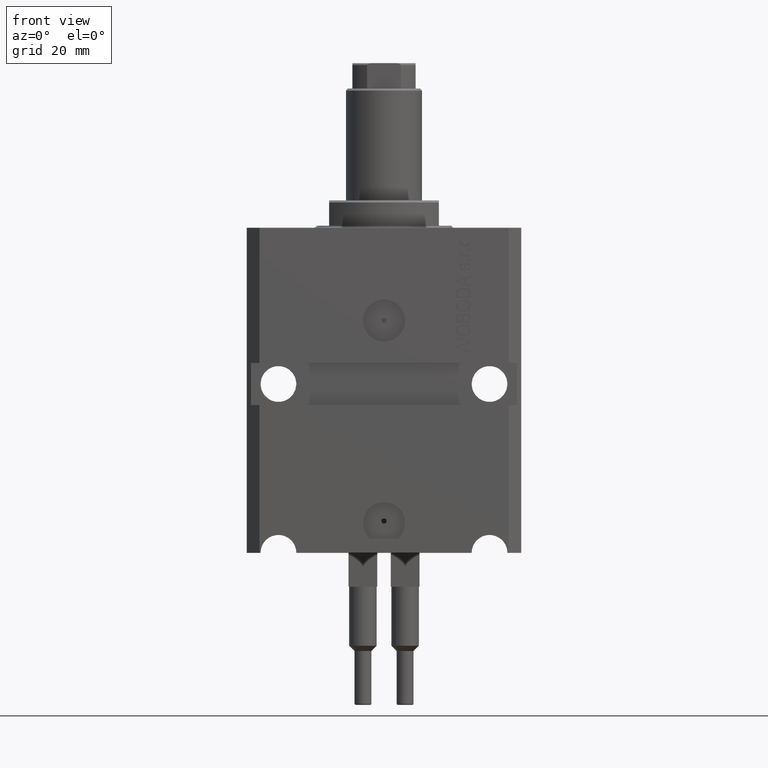
[diagram: clean part render]
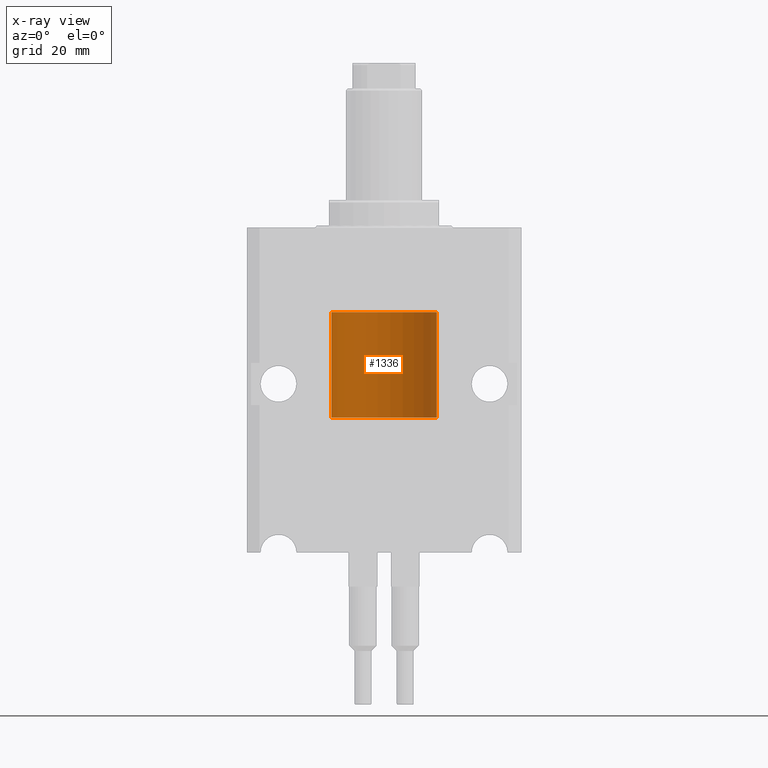
[diagram: x-ray — body ghosted, one internal face saturated and labeled with its STEP entity id]
A machine part, front view, then the same camera in x-ray: the body is ghosted and one INTERNAL B-rep face — a face not visible from any outside direction — is saturated and labeled: STEP entity #1336.
In plain terms, the highlighted cylindrical surface (partial cylindrical patch) has radius 12.5 mm, axis along (-0, -0, -1).
Its self-contained STEP definition (entity closure, byte-faithful):
#354 = AXIS2_PLACEMENT_3D ( 'NONE', #20934, #34907, #3498 ) ;
#892 = LINE ( 'NONE', #24735, #3805 ) ;
#1336 = ADVANCED_FACE ( 'NONE', ( #38346 ), #14269, .T. ) ;
#3293 = ORIENTED_EDGE ( 'NONE', *, *, #7024, .F. ) ;
#3498 = DIRECTION ( 'NONE',  ( -1.000000000000000000, 0.000000000000000000, 0.000000000000000000 ) ) ;
#3805 = VECTOR ( 'NONE', #32074, 1000.000000000000000 ) ;
#4295 = CARTESIAN_POINT ( 'NONE',  ( 12.50000000000000000, 1.530808498934191521E-15, 25.00000000000000000 ) ) ;
#5394 = CARTESIAN_POINT ( 'NONE',  ( 0.000000000000000000, 0.000000000000000000, 25.00000000000000000 ) ) ;
#6295 = EDGE_CURVE ( 'NONE', #20376, #21725, #24294, .T. ) ;
#7024 = EDGE_CURVE ( 'NONE', #21725, #26743, #892, .T. ) ;
#8946 = DIRECTION ( 'NONE',  ( 0.000000000000000000, 0.000000000000000000, 1.000000000000000000 ) ) ;
#9848 = CARTESIAN_POINT ( 'NONE',  ( 0.000000000000000000, 0.000000000000000000, 0.000000000000000000 ) ) ;
#14269 = CYLINDRICAL_SURFACE ( 'NONE', #354, 12.50000000000000000 ) ;
#18956 = ORIENTED_EDGE ( 'NONE', *, *, #36259, .T. ) ;
#19407 = ORIENTED_EDGE ( 'NONE', *, *, #38024, .T. ) ;
#20376 = VERTEX_POINT ( 'NONE', #4295 ) ;
#20607 = ORIENTED_EDGE ( 'NONE', *, *, #6295, .F. ) ;
#20934 = CARTESIAN_POINT ( 'NONE',  ( 0.000000000000000000, 0.000000000000000000, 25.00000000000000000 ) ) ;
#21725 = VERTEX_POINT ( 'NONE', #38191 ) ;
#24294 = CIRCLE ( 'NONE', #27208, 12.50000000000000000 ) ;
#24735 = CARTESIAN_POINT ( 'NONE',  ( -12.50000000000000000, 0.000000000000000000, 25.00000000000000000 ) ) ;
#24780 = CIRCLE ( 'NONE', #30641, 12.50000000000000000 ) ;
#26743 = VERTEX_POINT ( 'NONE', #43184 ) ;
#27208 = AXIS2_PLACEMENT_3D ( 'NONE', #5394, #30598, #30146 ) ;
#27346 = LINE ( 'NONE', #44752, #29953 ) ;
#27617 = EDGE_LOOP ( 'NONE', ( #20607, #19407, #18956, #3293 ) ) ;
#28333 = VERTEX_POINT ( 'NONE', #31128 ) ;
#29953 = VECTOR ( 'NONE', #41322, 1000.000000000000000 ) ;
#30146 = DIRECTION ( 'NONE',  ( 1.000000000000000000, 0.000000000000000000, 0.000000000000000000 ) ) ;
#30598 = DIRECTION ( 'NONE',  ( 0.000000000000000000, 0.000000000000000000, 1.000000000000000000 ) ) ;
#30641 = AXIS2_PLACEMENT_3D ( 'NONE', #9848, #8946, #44240 ) ;
#31128 = CARTESIAN_POINT ( 'NONE',  ( 12.50000000000000000, 1.530808498934191521E-15, 0.000000000000000000 ) ) ;
#32074 = DIRECTION ( 'NONE',  ( -0.000000000000000000, -0.000000000000000000, -1.000000000000000000 ) ) ;
#34907 = DIRECTION ( 'NONE',  ( -0.000000000000000000, -0.000000000000000000, -1.000000000000000000 ) ) ;
#36259 = EDGE_CURVE ( 'NONE', #28333, #26743, #24780, .T. ) ;
#38024 = EDGE_CURVE ( 'NONE', #20376, #28333, #27346, .T. ) ;
#38191 = CARTESIAN_POINT ( 'NONE',  ( -12.50000000000000000, 0.000000000000000000, 25.00000000000000000 ) ) ;
#38346 = FACE_OUTER_BOUND ( 'NONE', #27617, .T. ) ;
#41322 = DIRECTION ( 'NONE',  ( -0.000000000000000000, -0.000000000000000000, -1.000000000000000000 ) ) ;
#43184 = CARTESIAN_POINT ( 'NONE',  ( -12.50000000000000000, 0.000000000000000000, 0.000000000000000000 ) ) ;
#44240 = DIRECTION ( 'NONE',  ( 1.000000000000000000, 0.000000000000000000, 0.000000000000000000 ) ) ;
#44752 = CARTESIAN_POINT ( 'NONE',  ( 12.50000000000000000, 1.530808498934191521E-15, 25.00000000000000000 ) ) ;